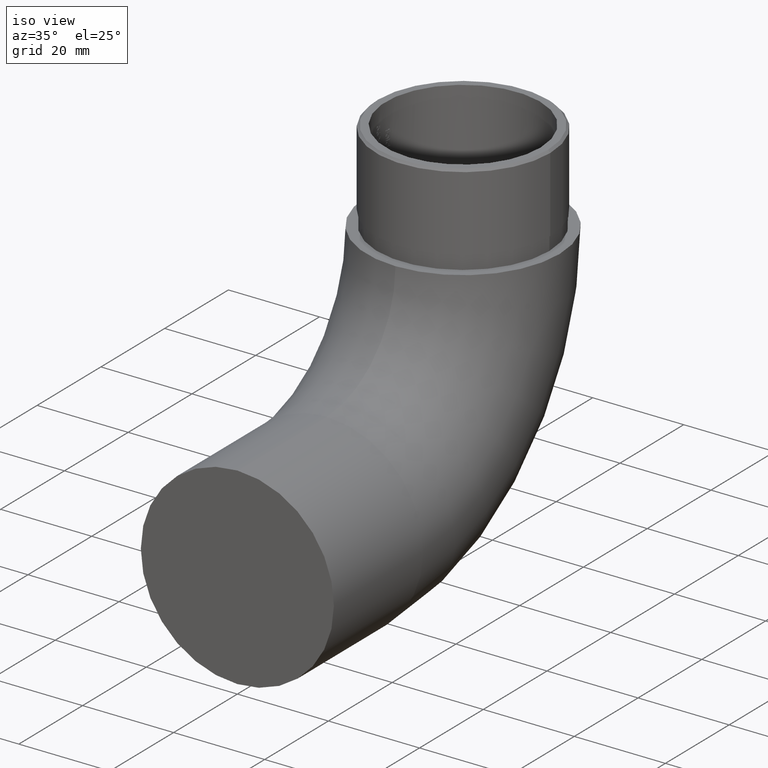
[diagram: clean part render]
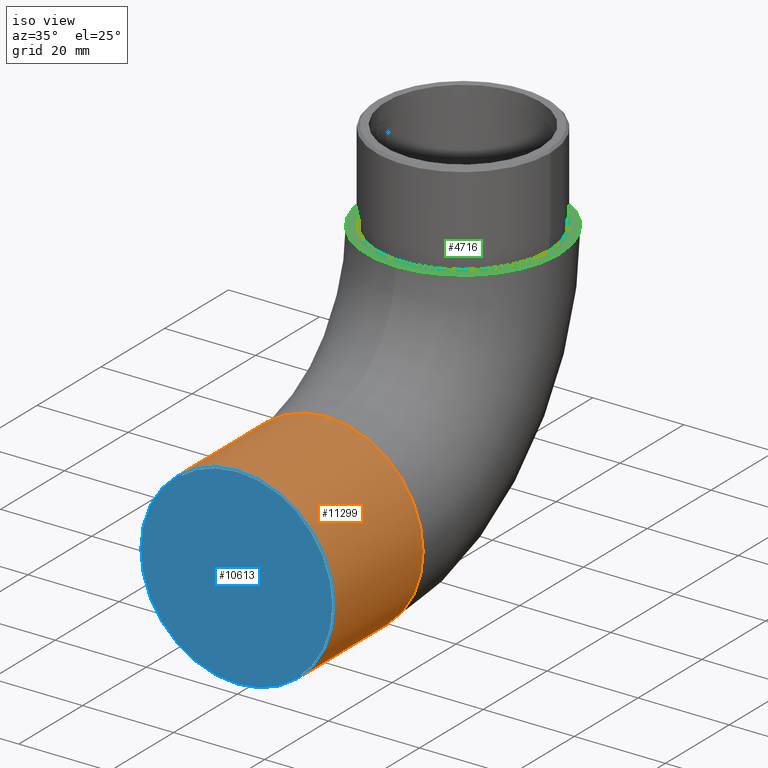
[diagram: same view with three faces highlighted in distinct colors, each labeled with its STEP entity id]
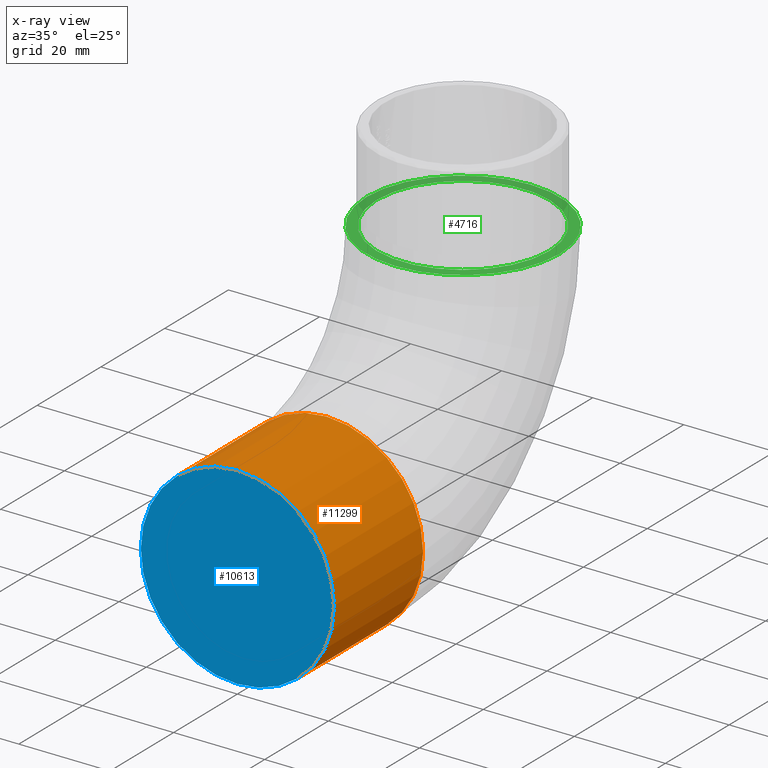
[diagram: x-ray of the same camera — body ghosted, the three highlighted faces saturated]
A machine part, iso view with three faces highlighted in distinct colors.
The next image is the same camera in x-ray (body ghosted, the three faces saturated) — at least one of them is partly hidden behind the body in this view.
Their STEP definitions:

[orange] entity #11299 — the highlighted cylindrical surface (bore or boss wall) has radius 21.2 mm, axis along (-0, -1, -0).
#96 = CARTESIAN_POINT ( 'NONE',  ( 0.0000000000000000000, 28.00000000000000000, 21.19999999999999900 ) ) ;
#496 = AXIS2_PLACEMENT_3D ( 'NONE', #9844, #8688, #12071 ) ;
#852 = EDGE_CURVE ( 'NONE', #11018, #11018, #4702, .T. ) ;
#854 = EDGE_LOOP ( 'NONE', ( #8131 ) ) ;
#1025 = VERTEX_POINT ( 'NONE', #4640 ) ;
#1875 = CARTESIAN_POINT ( 'NONE',  ( 0.0000000000000000000, 28.00000000000000000, 0.0000000000000000000 ) ) ;
#1955 = ORIENTED_EDGE ( 'NONE', *, *, #14041, .T. ) ;
#2578 = AXIS2_PLACEMENT_3D ( 'NONE', #1875, #13093, #12001 ) ;
#3311 = FACE_OUTER_BOUND ( 'NONE', #5160, .T. ) ;
#4640 = CARTESIAN_POINT ( 'NONE',  ( 0.0000000000000000000, 0.0000000000000000000, 21.19999999999999900 ) ) ;
#4702 = CIRCLE ( 'NONE', #11939, 21.19999999999999900 ) ;
#5160 = EDGE_LOOP ( 'NONE', ( #1955 ) ) ;
#6229 = CARTESIAN_POINT ( 'NONE',  ( 0.0000000000000000000, 28.00000000000000000, 0.0000000000000000000 ) ) ;
#8131 = ORIENTED_EDGE ( 'NONE', *, *, #852, .F. ) ;
#8600 = CIRCLE ( 'NONE', #496, 21.19999999999999900 ) ;
#8688 = DIRECTION ( 'NONE',  ( 0.0000000000000000000, 1.000000000000000000, 0.0000000000000000000 ) ) ;
#9167 = DIRECTION ( 'NONE',  ( 0.0000000000000000000, 1.000000000000000000, 0.0000000000000000000 ) ) ;
#9844 = CARTESIAN_POINT ( 'NONE',  ( 0.0000000000000000000, 0.0000000000000000000, 0.0000000000000000000 ) ) ;
#10263 = DIRECTION ( 'NONE',  ( 0.0000000000000000000, 0.0000000000000000000, 1.000000000000000000 ) ) ;
#10348 = FACE_OUTER_BOUND ( 'NONE', #854, .T. ) ;
#11018 = VERTEX_POINT ( 'NONE', #96 ) ;
#11299 = ADVANCED_FACE ( 'NONE', ( #3311, #10348 ), #11742, .T. ) ;
#11742 = CYLINDRICAL_SURFACE ( 'NONE', #2578, 21.19999999999999900 ) ;
#11939 = AXIS2_PLACEMENT_3D ( 'NONE', #6229, #9167, #10263 ) ;
#12001 = DIRECTION ( 'NONE',  ( 0.0000000000000000000, 0.0000000000000000000, -1.000000000000000000 ) ) ;
#12071 = DIRECTION ( 'NONE',  ( 0.0000000000000000000, 0.0000000000000000000, 1.000000000000000000 ) ) ;
#13093 = DIRECTION ( 'NONE',  ( -0.0000000000000000000, -1.000000000000000000, -0.0000000000000000000 ) ) ;
#14041 = EDGE_CURVE ( 'NONE', #1025, #1025, #8600, .T. ) ;

[blue] entity #10613 — the highlighted planar face has unit normal (0, 1, 0).
#496 = AXIS2_PLACEMENT_3D ( 'NONE', #9844, #8688, #12071 ) ;
#1025 = VERTEX_POINT ( 'NONE', #4640 ) ;
#2089 = FACE_OUTER_BOUND ( 'NONE', #12942, .T. ) ;
#4640 = CARTESIAN_POINT ( 'NONE',  ( 0.0000000000000000000, 0.0000000000000000000, 21.19999999999999900 ) ) ;
#7361 = ORIENTED_EDGE ( 'NONE', *, *, #14041, .F. ) ;
#8600 = CIRCLE ( 'NONE', #496, 21.19999999999999900 ) ;
#8688 = DIRECTION ( 'NONE',  ( 0.0000000000000000000, 1.000000000000000000, 0.0000000000000000000 ) ) ;
#9844 = CARTESIAN_POINT ( 'NONE',  ( 0.0000000000000000000, 0.0000000000000000000, 0.0000000000000000000 ) ) ;
#10056 = AXIS2_PLACEMENT_3D ( 'NONE', #12746, #10180, #13509 ) ;
#10180 = DIRECTION ( 'NONE',  ( 0.0000000000000000000, 1.000000000000000000, 0.0000000000000000000 ) ) ;
#10613 = ADVANCED_FACE ( 'NONE', ( #2089 ), #13886, .F. ) ;
#12071 = DIRECTION ( 'NONE',  ( 0.0000000000000000000, 0.0000000000000000000, 1.000000000000000000 ) ) ;
#12746 = CARTESIAN_POINT ( 'NONE',  ( 0.0000000000000000000, 0.0000000000000000000, 0.0000000000000000000 ) ) ;
#12942 = EDGE_LOOP ( 'NONE', ( #7361 ) ) ;
#13509 = DIRECTION ( 'NONE',  ( 0.0000000000000000000, -0.0000000000000000000, 1.000000000000000000 ) ) ;
#13886 = PLANE ( 'NONE',  #10056 ) ;
#14041 = EDGE_CURVE ( 'NONE', #1025, #1025, #8600, .T. ) ;

[green] entity #4716 — the highlighted planar face has unit normal (0, -0, 1).
#144 = CARTESIAN_POINT ( 'NONE',  ( 0.0000000000000000000, 70.80000000000001100, 42.80000000000001100 ) ) ;
#180 = FACE_OUTER_BOUND ( 'NONE', #8741, .T. ) ;
#197 = DIRECTION ( 'NONE',  ( 0.0000000000000000000, -1.000000000000000000, -1.608122649676636600E-016 ) ) ;
#231 = CARTESIAN_POINT ( 'NONE',  ( 0.0000000000000000000, 70.80000000000001100, 42.79999999999999700 ) ) ;
#1861 = ORIENTED_EDGE ( 'NONE', *, *, #10926, .F. ) ;
#1908 = DIRECTION ( 'NONE',  ( 0.0000000000000000000, -1.000000000000000000, 0.0000000000000000000 ) ) ;
#2952 = ORIENTED_EDGE ( 'NONE', *, *, #8887, .T. ) ;
#3492 = DIRECTION ( 'NONE',  ( 0.0000000000000000000, 0.0000000000000000000, 1.000000000000000000 ) ) ;
#4716 = ADVANCED_FACE ( 'NONE', ( #180, #6719 ), #11114, .T. ) ;
#5282 = CARTESIAN_POINT ( 'NONE',  ( 0.0000000000000000000, 70.80000000000001100, 42.80000000000001100 ) ) ;
#5338 = VERTEX_POINT ( 'NONE', #12406 ) ;
#6421 = AXIS2_PLACEMENT_3D ( 'NONE', #144, #6787, #197 ) ;
#6719 = FACE_BOUND ( 'NONE', #13703, .T. ) ;
#6787 = DIRECTION ( 'NONE',  ( 0.0000000000000000000, -1.608122649676636600E-016, 1.000000000000000000 ) ) ;
#6890 = VERTEX_POINT ( 'NONE', #9015 ) ;
#8741 = EDGE_LOOP ( 'NONE', ( #2952 ) ) ;
#8887 = EDGE_CURVE ( 'NONE', #5338, #5338, #11488, .T. ) ;
#9015 = CARTESIAN_POINT ( 'NONE',  ( 18.95000000000000600, 70.80000000000001100, 42.79999999999999700 ) ) ;
#10417 = AXIS2_PLACEMENT_3D ( 'NONE', #231, #3492, #12314 ) ;
#10589 = AXIS2_PLACEMENT_3D ( 'NONE', #5282, #13943, #1908 ) ;
#10926 = EDGE_CURVE ( 'NONE', #6890, #6890, #13788, .T. ) ;
#11114 = PLANE ( 'NONE',  #6421 ) ;
#11488 = CIRCLE ( 'NONE', #10589, 21.19999999999999600 ) ;
#12314 = DIRECTION ( 'NONE',  ( 1.000000000000000000, 0.0000000000000000000, 0.0000000000000000000 ) ) ;
#12406 = CARTESIAN_POINT ( 'NONE',  ( 0.0000000000000000000, 49.60000000000001600, 42.80000000000001100 ) ) ;
#13703 = EDGE_LOOP ( 'NONE', ( #1861 ) ) ;
#13788 = CIRCLE ( 'NONE', #10417, 18.95000000000000600 ) ;
#13943 = DIRECTION ( 'NONE',  ( 0.0000000000000000000, -1.608122649676636600E-016, 1.000000000000000000 ) ) ;